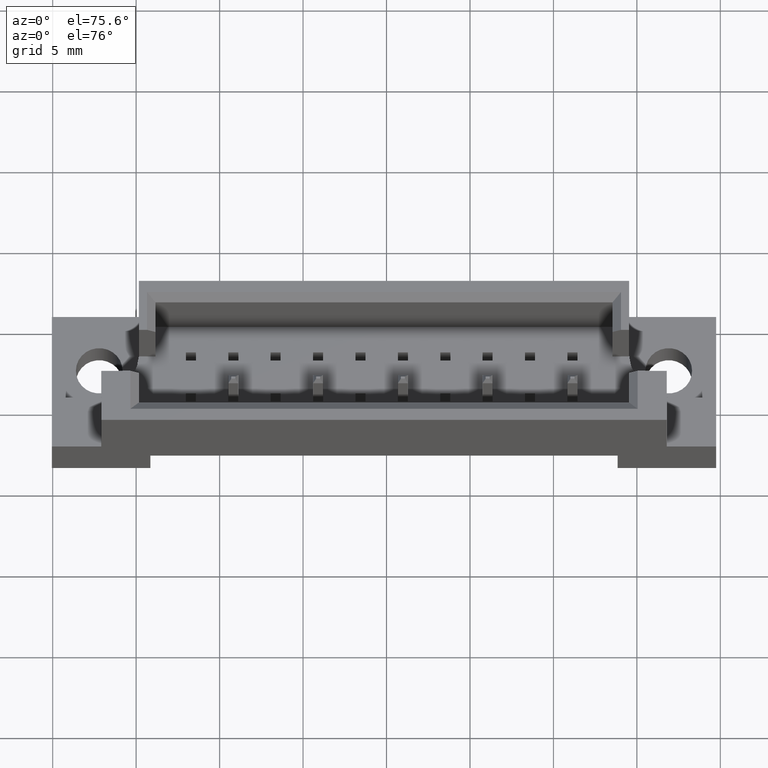
[diagram: clean part render]
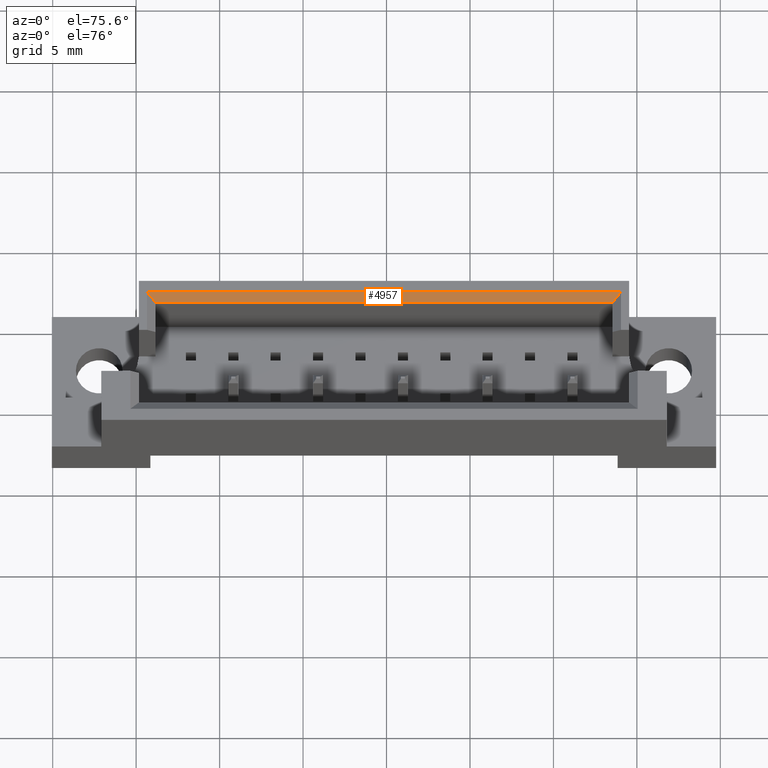
[diagram: same view with one face highlighted and labeled with its STEP entity id]
A machine part, auxiliary view. The second image highlights one B-rep face of the part: STEP entity #4957.
In plain terms, the highlighted planar face has unit normal (0, 0.7071, -0.7071).
Its self-contained STEP definition (entity closure, byte-faithful):
#136 = DIRECTION ( 'NONE',  ( 0.0000000000000000000, 0.7071067811865523467, 0.7071067811865426878 ) ) ;
#171 = FACE_OUTER_BOUND ( 'NONE', #4425, .T. ) ;
#198 = PLANE ( 'NONE',  #4933 ) ;
#239 = ORIENTED_EDGE ( 'NONE', *, *, #2994, .F. ) ;
#251 = CARTESIAN_POINT ( 'NONE',  ( 13.68999999999999417, 3.100000000000133760, 11.09199999999999697 ) ) ;
#306 = DIRECTION ( 'NONE',  ( -1.000000000000000000, 0.0000000000000000000, 0.0000000000000000000 ) ) ;
#374 = VERTEX_POINT ( 'NONE', #2168 ) ;
#437 = CARTESIAN_POINT ( 'NONE',  ( -19.90000000000000924, 3.608000000000142204, 11.59999999999999964 ) ) ;
#788 = DIRECTION ( 'NONE',  ( -0.5773502691896283956, -0.5773502691896283956, -0.5773502691896205130 ) ) ;
#1068 = VECTOR ( 'NONE', #306, 1000.000000000000000 ) ;
#1463 = VERTEX_POINT ( 'NONE', #4849 ) ;
#1653 = EDGE_CURVE ( 'NONE', #374, #1463, #4790, .T. ) ;
#1819 = ORIENTED_EDGE ( 'NONE', *, *, #1653, .F. ) ;
#2099 = VECTOR ( 'NONE', #3224, 1000.000000000000000 ) ;
#2168 = CARTESIAN_POINT ( 'NONE',  ( 14.19800000000000217, 3.608000000000142204, 11.59999999999999964 ) ) ;
#2234 = DIRECTION ( 'NONE',  ( 0.5773502691896283956, -0.5773502691896283956, -0.5773502691896205130 ) ) ;
#2468 = CARTESIAN_POINT ( 'NONE',  ( -13.68999999999999417, 3.100000000000133760, 11.09199999999999697 ) ) ;
#2490 = LINE ( 'NONE', #437, #2099 ) ;
#2561 = CARTESIAN_POINT ( 'NONE',  ( -4.563333333333249087, -6.026666666666612215, 1.965333333333376231 ) ) ;
#2763 = VECTOR ( 'NONE', #788, 1000.000000000000000 ) ;
#2994 = EDGE_CURVE ( 'NONE', #1463, #4789, #4770, .T. ) ;
#3205 = ORIENTED_EDGE ( 'NONE', *, *, #4800, .F. ) ;
#3224 = DIRECTION ( 'NONE',  ( 1.000000000000000000, 0.0000000000000000000, 0.0000000000000000000 ) ) ;
#3719 = EDGE_CURVE ( 'NONE', #4828, #4789, #4550, .T. ) ;
#4073 = CARTESIAN_POINT ( 'NONE',  ( -14.19800000000000217, 3.608000000000142204, 11.59999999999999964 ) ) ;
#4182 = ORIENTED_EDGE ( 'NONE', *, *, #3719, .T. ) ;
#4425 = EDGE_LOOP ( 'NONE', ( #4182, #239, #1819, #3205 ) ) ;
#4430 = VECTOR ( 'NONE', #2234, 1000.000000000000000 ) ;
#4550 = LINE ( 'NONE', #2561, #4430 ) ;
#4770 = LINE ( 'NONE', #4791, #1068 ) ;
#4789 = VERTEX_POINT ( 'NONE', #2468 ) ;
#4790 = LINE ( 'NONE', #5108, #2763 ) ;
#4791 = CARTESIAN_POINT ( 'NONE',  ( 13.68999999999999417, 3.100000000000133760, 11.09199999999999697 ) ) ;
#4800 = EDGE_CURVE ( 'NONE', #4828, #374, #2490, .T. ) ;
#4828 = VERTEX_POINT ( 'NONE', #4073 ) ;
#4849 = CARTESIAN_POINT ( 'NONE',  ( 13.68999999999999417, 3.100000000000133760, 11.09199999999999697 ) ) ;
#4933 = AXIS2_PLACEMENT_3D ( 'NONE', #251, #4942, #136 ) ;
#4942 = DIRECTION ( 'NONE',  ( 0.0000000000000000000, 0.7071067811865426878, -0.7071067811865523467 ) ) ;
#4957 = ADVANCED_FACE ( 'NONE', ( #171 ), #198, .F. ) ;
#5108 = CARTESIAN_POINT ( 'NONE',  ( 13.07999999999995211, 2.490000000000093916, 10.48199999999996557 ) ) ;